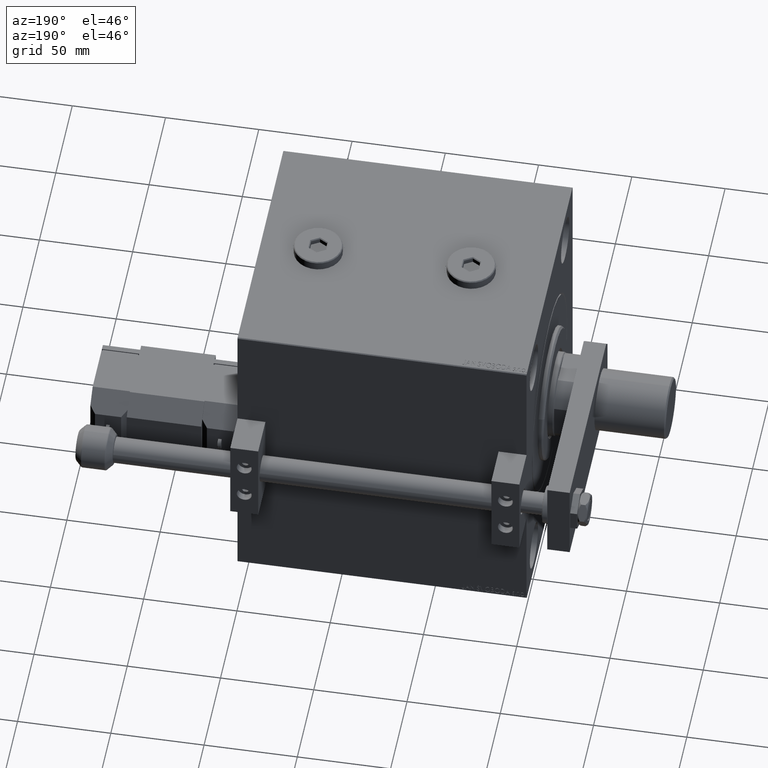
[diagram: clean part render]
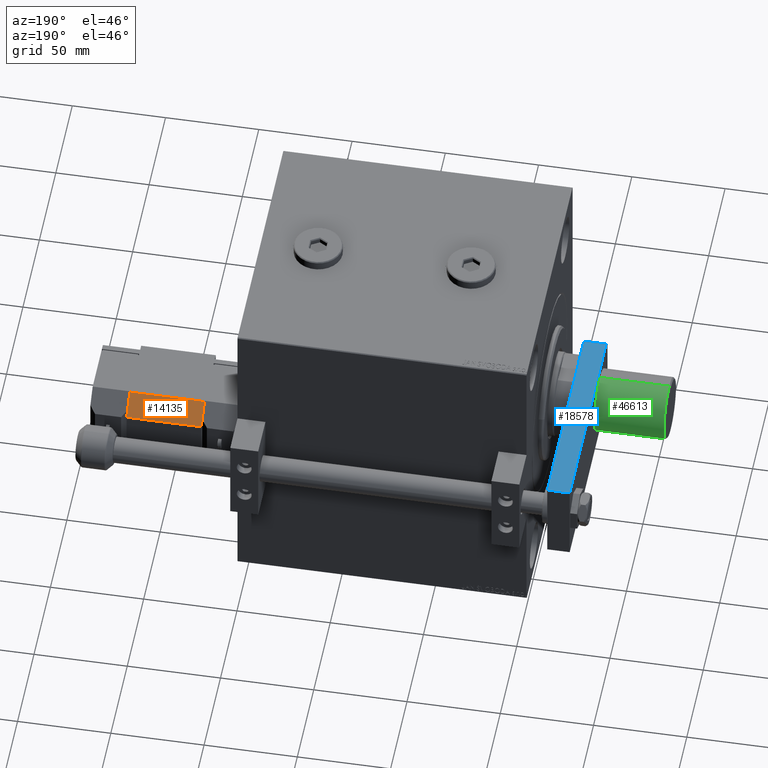
[diagram: same view with three faces highlighted in distinct colors, each labeled with its STEP entity id]
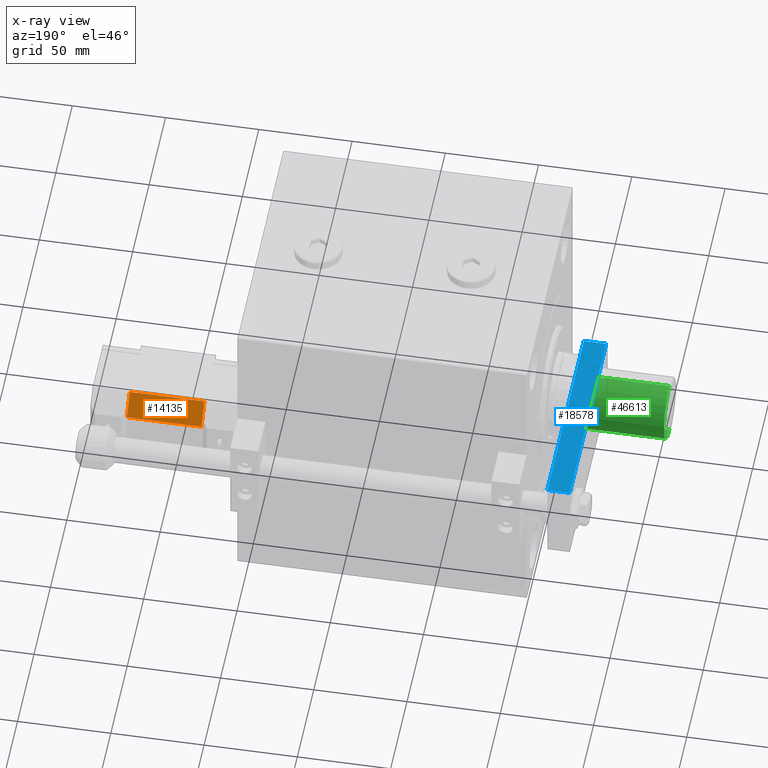
[diagram: x-ray of the same camera — body ghosted, the three highlighted faces saturated]
A machine part, auxiliary view with three faces highlighted in distinct colors.
The next image is the same camera in x-ray (body ghosted, the three faces saturated) — at least one of them is partly hidden behind the body in this view.
Their STEP definitions:

[orange] entity #14135 — the highlighted planar face has unit normal (0, -0.7071, -0.7071).
#217 = EDGE_CURVE ( 'NONE', #38241, #9724, #26326, .T. ) ;
#2845 = LINE ( 'NONE', #26775, #49011 ) ;
#3785 = EDGE_CURVE ( 'NONE', #9410, #47021, #2845, .T. ) ;
#4214 = CARTESIAN_POINT ( 'NONE',  ( -20.00000000000000000, 12.50000000000000533, 40.00000000000000000 ) ) ;
#5066 = DIRECTION ( 'NONE',  ( -0.7071067811865491270, -0.7071067811865459074, -0.000000000000000000 ) ) ;
#5827 = CARTESIAN_POINT ( 'NONE',  ( -16.24999999999995381, 16.25000000000002842, 40.00000000000000000 ) ) ;
#9410 = VERTEX_POINT ( 'NONE', #4214 ) ;
#9724 = VERTEX_POINT ( 'NONE', #31468 ) ;
#12392 = DIRECTION ( 'NONE',  ( 0.7071067811865459074, -0.7071067811865491270, 0.000000000000000000 ) ) ;
#12652 = CARTESIAN_POINT ( 'NONE',  ( -20.00000000000000000, 12.50000000000000355, 40.00000000000000000 ) ) ;
#14135 = ADVANCED_FACE ( 'NONE', ( #46275 ), #32184, .F. ) ;
#14554 = DIRECTION ( 'NONE',  ( -0.000000000000000000, 0.000000000000000000, -1.000000000000000000 ) ) ;
#15062 = ORIENTED_EDGE ( 'NONE', *, *, #3785, .F. ) ;
#15166 = AXIS2_PLACEMENT_3D ( 'NONE', #12652, #12392, #40007 ) ;
#16179 = VECTOR ( 'NONE', #5066, 1000.000000000000000 ) ;
#20337 = ORIENTED_EDGE ( 'NONE', *, *, #22131, .F. ) ;
#20903 = EDGE_LOOP ( 'NONE', ( #20337, #40054, #35246, #15062 ) ) ;
#21652 = CARTESIAN_POINT ( 'NONE',  ( -20.00000000000000000, 12.50000000000000355, 0.000000000000000000 ) ) ;
#22131 = EDGE_CURVE ( 'NONE', #9724, #9410, #40720, .T. ) ;
#22694 = DIRECTION ( 'NONE',  ( 0.000000000000000000, 0.000000000000000000, 1.000000000000000000 ) ) ;
#22945 = CARTESIAN_POINT ( 'NONE',  ( -10.49999999999996270, 22.00000000000000000, 40.00000000000000000 ) ) ;
#26326 = LINE ( 'NONE', #22945, #26421 ) ;
#26421 = VECTOR ( 'NONE', #22694, 1000.000000000000000 ) ;
#26676 = VECTOR ( 'NONE', #38041, 1000.000000000000000 ) ;
#26775 = CARTESIAN_POINT ( 'NONE',  ( -20.00000000000000000, 12.50000000000000533, 40.00000000000000000 ) ) ;
#31468 = CARTESIAN_POINT ( 'NONE',  ( -10.49999999999996270, 22.00000000000000000, 40.00000000000000000 ) ) ;
#32184 = PLANE ( 'NONE',  #15166 ) ;
#35246 = ORIENTED_EDGE ( 'NONE', *, *, #37654, .F. ) ;
#37654 = EDGE_CURVE ( 'NONE', #47021, #38241, #49015, .T. ) ;
#38041 = DIRECTION ( 'NONE',  ( 0.7071067811865491270, 0.7071067811865459074, -0.000000000000000000 ) ) ;
#38241 = VERTEX_POINT ( 'NONE', #49659 ) ;
#38737 = CARTESIAN_POINT ( 'NONE',  ( -20.00000000000000000, 12.50000000000000533, 0.000000000000000000 ) ) ;
#40007 = DIRECTION ( 'NONE',  ( 0.000000000000000000, 0.000000000000000000, -1.000000000000000000 ) ) ;
#40054 = ORIENTED_EDGE ( 'NONE', *, *, #217, .F. ) ;
#40720 = LINE ( 'NONE', #5827, #16179 ) ;
#46275 = FACE_OUTER_BOUND ( 'NONE', #20903, .T. ) ;
#47021 = VERTEX_POINT ( 'NONE', #38737 ) ;
#49011 = VECTOR ( 'NONE', #14554, 1000.000000000000000 ) ;
#49015 = LINE ( 'NONE', #21652, #26676 ) ;
#49659 = CARTESIAN_POINT ( 'NONE',  ( -10.49999999999996270, 22.00000000000000000, 0.000000000000000000 ) ) ;

[blue] entity #18578 — the highlighted planar face has unit normal (-0, -0, -1).
#8 = CARTESIAN_POINT ( 'NONE',  ( 22.50000000000001066, 0.000000000000000000, 0.000000000000000000 ) ) ;
#2416 = VECTOR ( 'NONE', #15897, 1000.000000000000000 ) ;
#4974 = ORIENTED_EDGE ( 'NONE', *, *, #6870, .F. ) ;
#6516 = EDGE_CURVE ( 'NONE', #15325, #40317, #31770, .T. ) ;
#6870 = EDGE_CURVE ( 'NONE', #11821, #40317, #34471, .T. ) ;
#7406 = CARTESIAN_POINT ( 'NONE',  ( 22.50000000000001066, 3.999999999999989786, 0.000000000000000000 ) ) ;
#7519 = DIRECTION ( 'NONE',  ( 9.050731179009426604E-17, -1.000000000000000000, 0.000000000000000000 ) ) ;
#8383 = VERTEX_POINT ( 'NONE', #48004 ) ;
#9456 = ORIENTED_EDGE ( 'NONE', *, *, #10350, .T. ) ;
#10350 = EDGE_CURVE ( 'NONE', #8383, #15325, #31289, .T. ) ;
#10356 = EDGE_CURVE ( 'NONE', #8383, #11821, #23213, .T. ) ;
#11150 = AXIS2_PLACEMENT_3D ( 'NONE', #14296, #27034, #7519 ) ;
#11821 = VERTEX_POINT ( 'NONE', #49523 ) ;
#14296 = CARTESIAN_POINT ( 'NONE',  ( 22.50000000000001066, 0.000000000000000000, 12.00000000000000000 ) ) ;
#14322 = ORIENTED_EDGE ( 'NONE', *, *, #6516, .T. ) ;
#14535 = CARTESIAN_POINT ( 'NONE',  ( 22.50000000000000000, 115.0000000000000000, 0.000000000000000000 ) ) ;
#14903 = VECTOR ( 'NONE', #50368, 1000.000000000000000 ) ;
#15325 = VERTEX_POINT ( 'NONE', #7406 ) ;
#15593 = EDGE_LOOP ( 'NONE', ( #21409, #9456, #14322, #4974 ) ) ;
#15897 = DIRECTION ( 'NONE',  ( -9.050731179009427836E-17, 1.000000000000000000, 0.000000000000000000 ) ) ;
#18475 = PLANE ( 'NONE',  #11150 ) ;
#18578 = ADVANCED_FACE ( 'NONE', ( #31204 ), #18475, .F. ) ;
#21409 = ORIENTED_EDGE ( 'NONE', *, *, #10356, .F. ) ;
#22496 = VECTOR ( 'NONE', #35708, 1000.000000000000000 ) ;
#23213 = LINE ( 'NONE', #51100, #22496 ) ;
#25874 = CARTESIAN_POINT ( 'NONE',  ( 22.50000000000000000, 115.0000000000000000, 12.00000000000000000 ) ) ;
#27034 = DIRECTION ( 'NONE',  ( -1.000000000000000000, -9.050731179009426604E-17, 0.000000000000000000 ) ) ;
#27119 = CARTESIAN_POINT ( 'NONE',  ( 22.50000000000001066, 3.999999999999989786, 12.00000000000000000 ) ) ;
#31204 = FACE_OUTER_BOUND ( 'NONE', #15593, .T. ) ;
#31289 = LINE ( 'NONE', #27119, #44961 ) ;
#31770 = LINE ( 'NONE', #8, #2416 ) ;
#34471 = LINE ( 'NONE', #25874, #14903 ) ;
#35708 = DIRECTION ( 'NONE',  ( -9.050731179009427836E-17, 1.000000000000000000, 0.000000000000000000 ) ) ;
#40317 = VERTEX_POINT ( 'NONE', #14535 ) ;
#43289 = DIRECTION ( 'NONE',  ( 0.000000000000000000, 0.000000000000000000, -1.000000000000000000 ) ) ;
#44961 = VECTOR ( 'NONE', #43289, 1000.000000000000000 ) ;
#48004 = CARTESIAN_POINT ( 'NONE',  ( 22.50000000000001066, 3.999999999999989786, 12.00000000000000000 ) ) ;
#49523 = CARTESIAN_POINT ( 'NONE',  ( 22.50000000000000000, 115.0000000000000000, 12.00000000000000000 ) ) ;
#50368 = DIRECTION ( 'NONE',  ( -0.000000000000000000, -0.000000000000000000, -1.000000000000000000 ) ) ;
#51100 = CARTESIAN_POINT ( 'NONE',  ( 22.50000000000001066, 0.000000000000000000, 12.00000000000000000 ) ) ;

[green] entity #46613 — the highlighted cylindrical surface (edge-blend (fillet) strip) has radius 16.5 mm, axis along (-1, -0, 0).
#395 = DIRECTION ( 'NONE',  ( -1.000000000000000000, 0.000000000000000000, 0.000000000000000000 ) ) ;
#1109 = VERTEX_POINT ( 'NONE', #46396 ) ;
#3347 = CARTESIAN_POINT ( 'NONE',  ( 0.000000000000000000, 0.000000000000000000, 0.7999999999999951594 ) ) ;
#3865 = DIRECTION ( 'NONE',  ( 1.000000000000000000, 0.000000000000000000, 0.000000000000000000 ) ) ;
#4684 = CARTESIAN_POINT ( 'NONE',  ( -16.50000000000000000, 0.000000000000000000, 47.50000000000000000 ) ) ;
#8692 = EDGE_CURVE ( 'NONE', #10727, #17491, #31154, .T. ) ;
#10727 = VERTEX_POINT ( 'NONE', #18232 ) ;
#13660 = CARTESIAN_POINT ( 'NONE',  ( -16.50000000000000000, 0.000000000000000000, 47.50000000000000000 ) ) ;
#14372 = CIRCLE ( 'NONE', #43496, 16.50000000000000000 ) ;
#15202 = ORIENTED_EDGE ( 'NONE', *, *, #8692, .T. ) ;
#17083 = VERTEX_POINT ( 'NONE', #13660 ) ;
#17491 = VERTEX_POINT ( 'NONE', #35942 ) ;
#18232 = CARTESIAN_POINT ( 'NONE',  ( 16.50000000000000000, 2.020667218593133100E-15, 47.50000000000000000 ) ) ;
#18621 = EDGE_CURVE ( 'NONE', #10727, #17083, #14372, .T. ) ;
#20003 = CARTESIAN_POINT ( 'NONE',  ( 0.000000000000000000, 0.000000000000000000, 47.50000000000000000 ) ) ;
#20435 = FACE_OUTER_BOUND ( 'NONE', #31336, .T. ) ;
#23274 = ORIENTED_EDGE ( 'NONE', *, *, #39987, .F. ) ;
#24116 = VECTOR ( 'NONE', #41862, 1000.000000000000000 ) ;
#26895 = AXIS2_PLACEMENT_3D ( 'NONE', #47788, #40471, #395 ) ;
#27351 = EDGE_CURVE ( 'NONE', #17491, #1109, #43121, .T. ) ;
#27844 = DIRECTION ( 'NONE',  ( -0.000000000000000000, -0.000000000000000000, -1.000000000000000000 ) ) ;
#31154 = LINE ( 'NONE', #49934, #24116 ) ;
#31336 = EDGE_LOOP ( 'NONE', ( #48985, #15202, #45942, #23274 ) ) ;
#33150 = AXIS2_PLACEMENT_3D ( 'NONE', #3347, #46068, #35360 ) ;
#35360 = DIRECTION ( 'NONE',  ( 1.000000000000000000, 0.000000000000000000, 0.000000000000000000 ) ) ;
#35536 = CYLINDRICAL_SURFACE ( 'NONE', #26895, 16.50000000000000000 ) ;
#35942 = CARTESIAN_POINT ( 'NONE',  ( 16.50000000000000000, 2.020667218593133100E-15, 0.7999999999999951594 ) ) ;
#39540 = DIRECTION ( 'NONE',  ( 0.000000000000000000, 0.000000000000000000, 1.000000000000000000 ) ) ;
#39987 = EDGE_CURVE ( 'NONE', #17083, #1109, #40345, .T. ) ;
#40345 = LINE ( 'NONE', #4684, #45138 ) ;
#40471 = DIRECTION ( 'NONE',  ( -0.000000000000000000, -0.000000000000000000, -1.000000000000000000 ) ) ;
#41862 = DIRECTION ( 'NONE',  ( -0.000000000000000000, -0.000000000000000000, -1.000000000000000000 ) ) ;
#43121 = CIRCLE ( 'NONE', #33150, 16.50000000000000000 ) ;
#43496 = AXIS2_PLACEMENT_3D ( 'NONE', #20003, #39540, #3865 ) ;
#45138 = VECTOR ( 'NONE', #27844, 1000.000000000000000 ) ;
#45942 = ORIENTED_EDGE ( 'NONE', *, *, #27351, .T. ) ;
#46068 = DIRECTION ( 'NONE',  ( -0.000000000000000000, -0.000000000000000000, 1.000000000000000000 ) ) ;
#46396 = CARTESIAN_POINT ( 'NONE',  ( -16.50000000000000000, 0.000000000000000000, 0.7999999999999951594 ) ) ;
#46613 = ADVANCED_FACE ( 'NONE', ( #20435 ), #35536, .T. ) ;
#47788 = CARTESIAN_POINT ( 'NONE',  ( 0.000000000000000000, 0.000000000000000000, 47.50000000000000000 ) ) ;
#48985 = ORIENTED_EDGE ( 'NONE', *, *, #18621, .F. ) ;
#49934 = CARTESIAN_POINT ( 'NONE',  ( 16.50000000000000000, 2.020667218593133100E-15, 47.50000000000000000 ) ) ;